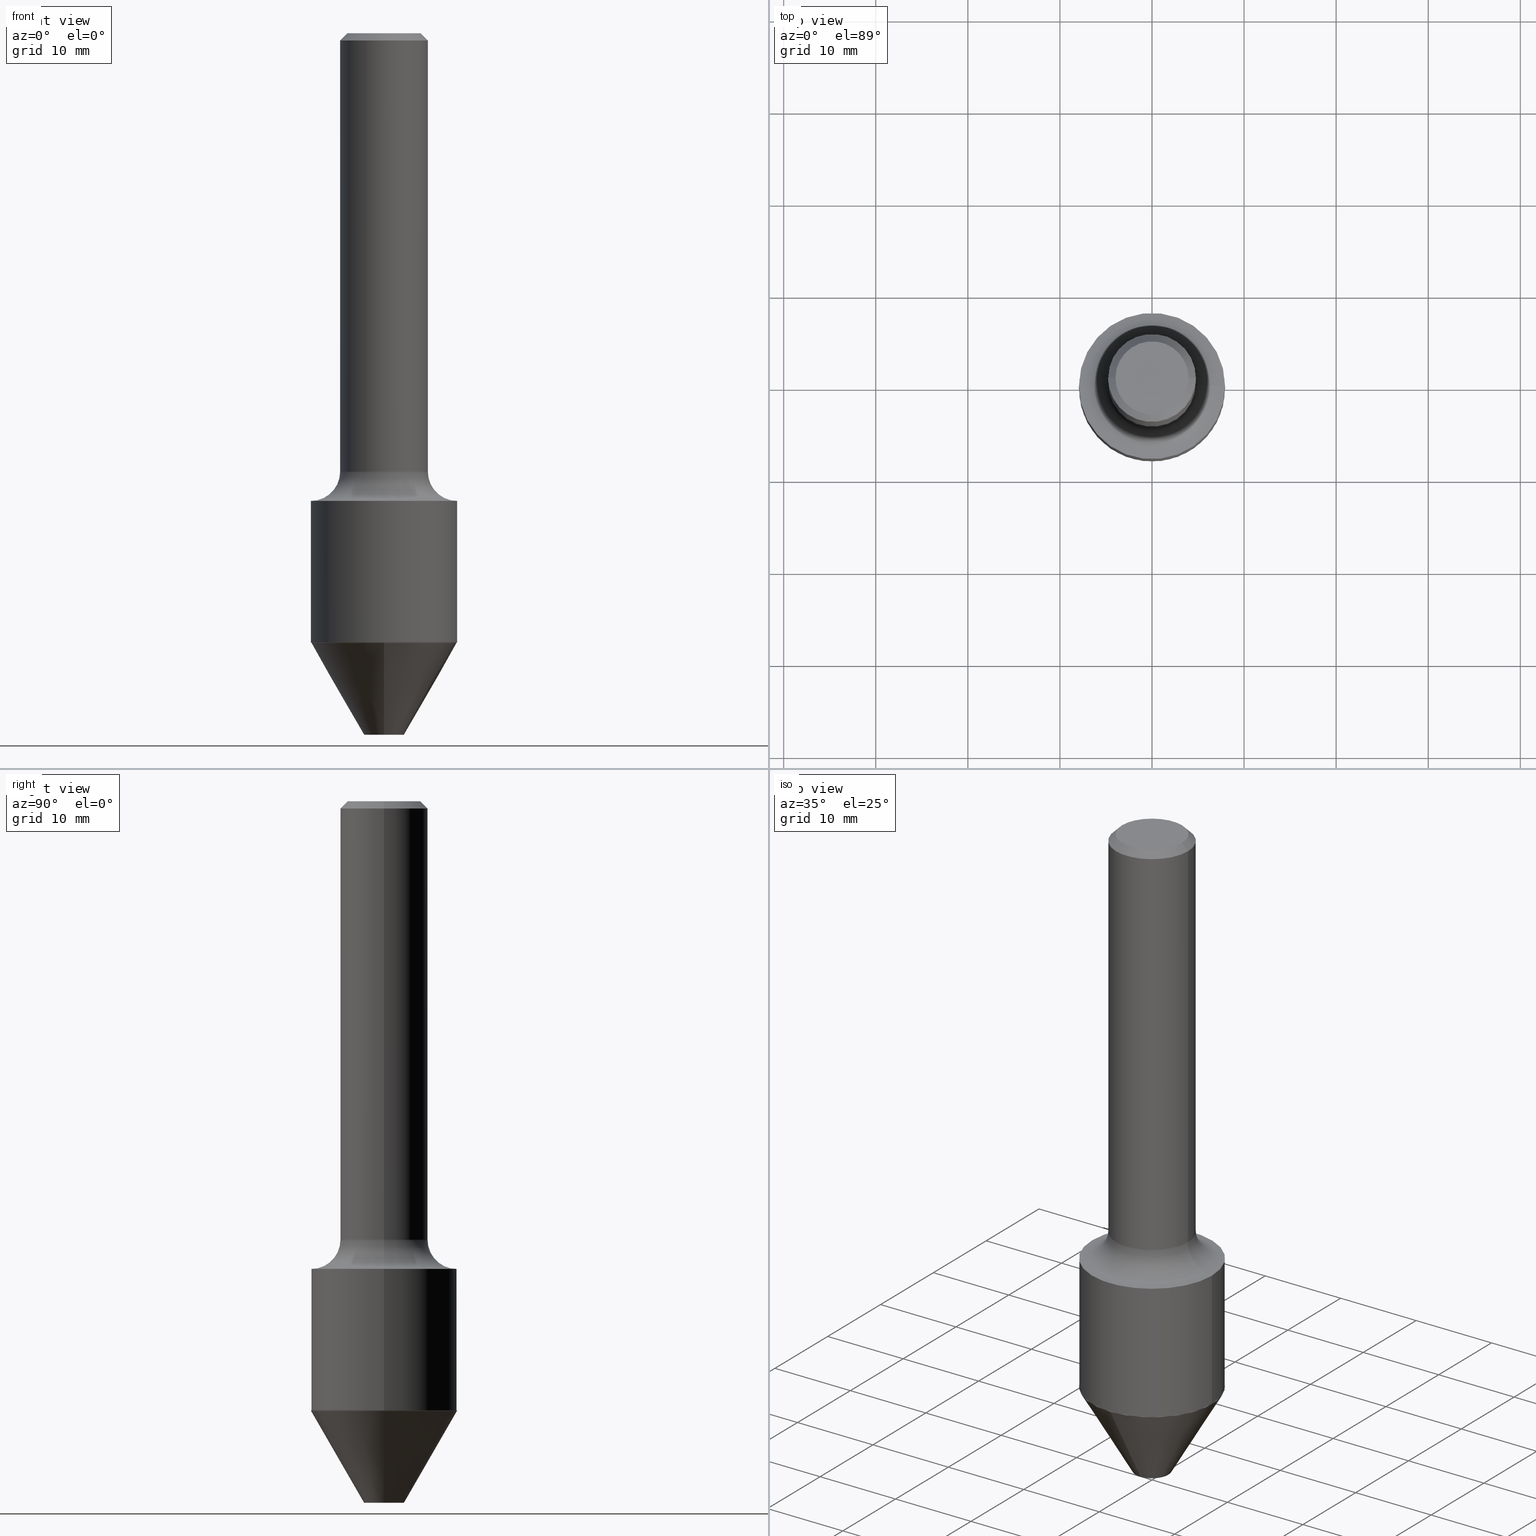
[diagram: canonical four-view strip — front | top / right | iso, engineering-drawing reading convention]
A machine part, canonical four-view strip (front | top / right | iso — engineering-drawing reading convention). The complete STEP part file that produces these views, byte-faithful:
ISO-10303-21;
HEADER;
FILE_DESCRIPTION (( 'STEP AP203' ),
    '1' );
FILE_NAME ('74064.STEP',
    '2025-06-20T12:29:10',
    ( '' ),
    ( '' ),
    'SwSTEP 2.0',
    'SolidWorks 2024',
    '' );
FILE_SCHEMA (( 'CONFIG_CONTROL_DESIGN' ));
ENDSEC;

DATA;
#1 = PERSON_AND_ORGANIZATION ( #16, #374 ) ;
#2 = EDGE_LOOP ( 'NONE', ( #279, #380, #509, #257 ) ) ;
#3 = AXIS2_PLACEMENT_3D ( 'NONE', #347, #268, #189 ) ;
#4 = DATE_AND_TIME ( #405, #421 ) ;
#5 = CARTESIAN_POINT ( 'NONE',  ( -1.871772216193331159E-46, 2.672394653685611172E-32, 7.654042494670965249E-18 ) ) ;
#6 = ADVANCED_FACE ( 'NONE', ( #90 ), #208, .T. ) ;
#7 = COORDINATED_UNIVERSAL_TIME_OFFSET ( 5, 0, .BEHIND. ) ;
#8 = LINE ( 'NONE', #369, #69 ) ;
#9 = VECTOR ( 'NONE', #235, 39.37007874015748143 ) ;
#10 = ORIENTED_EDGE ( 'NONE', *, *, #330, .F. ) ;
#11 = AXIS2_PLACEMENT_3D ( 'NONE', #270, #147, #433 ) ;
#12 = EDGE_CURVE ( 'NONE', #238, #324, #91, .T. ) ;
#13 = ORIENTED_EDGE ( 'NONE', *, *, #343, .T. ) ;
#14 = EDGE_CURVE ( 'NONE', #518, #115, #137, .T. ) ;
#15 = ORIENTED_EDGE ( 'NONE', *, *, #254, .F. ) ;
#16 = PERSON ( 'UNSPECIFIED', 'UNSPECIFIED', 'UNSPECIFIED', ('UNSPECIFIED'), ('UNSPECIFIED'), ('UNSPECIFIED') ) ;
#17 = ORIENTED_EDGE ( 'NONE', *, *, #282, .F. ) ;
#18 = AXIS2_PLACEMENT_3D ( 'NONE', #503, #271, #61 ) ;
#19 = AXIS2_PLACEMENT_3D ( 'NONE', #183, #114, #359 ) ;
#20 = EDGE_CURVE ( 'NONE', #217, #121, #169, .T. ) ;
#21 = ORIENTED_EDGE ( 'NONE', *, *, #48, .F. ) ;
#22 = ORIENTED_EDGE ( 'NONE', *, *, #197, .T. ) ;
#23 = FACE_OUTER_BOUND ( 'NONE', #170, .T. ) ;
#24 = DIRECTION ( 'NONE',  ( -0.7071067811863543939, 7.493145998869656807E-15, 0.7071067811867406405 ) ) ;
#25 = DIRECTION ( 'NONE',  ( -6.982962677686265133E-15, -1.000000000000000000, 3.496765431890257708E-15 ) ) ;
#26 = CARTESIAN_POINT ( 'NONE',  ( 0.1875000000000001110, -1.309305502066175797E-15, 9.142831454617385217E-30 ) ) ;
#27 = DIRECTION ( 'NONE',  ( -2.445468806185136597E-29, 3.491481338843145583E-15, 1.000000000000000000 ) ) ;
#28 = LINE ( 'NONE', #98, #212 ) ;
#29 = PLANE ( 'NONE',  #487 ) ;
#30 = AXIS2_PLACEMENT_3D ( 'NONE', #477, #162, #198 ) ;
#31 = DIRECTION ( 'NONE',  ( 0.7071067811863543939, -2.468850131080234027E-15, 0.7071067811867406405 ) ) ;
#32 = DIRECTION ( 'NONE',  ( 1.000000000000000000, -6.982962677686265922E-15, 0.000000000000000000 ) ) ;
#33 = FACE_OUTER_BOUND ( 'NONE', #443, .T. ) ;
#34 = PERSON_AND_ORGANIZATION ( #16, #374 ) ;
#35 = FACE_OUTER_BOUND ( 'NONE', #175, .T. ) ;
#36 = ORIENTED_EDGE ( 'NONE', *, *, #150, .T. ) ;
#37 = SHAPE_DEFINITION_REPRESENTATION ( #81, #413 ) ;
#38 =( NAMED_UNIT ( * ) PLANE_ANGLE_UNIT ( ) SI_UNIT ( $, .RADIAN. ) );
#39 = ORIENTED_EDGE ( 'NONE', *, *, #51, .T. ) ;
#40 = AXIS2_PLACEMENT_3D ( 'NONE', #385, #517, #32 ) ;
#41 = APPROVAL_DATE_TIME ( #408, #246 ) ;
#42 = EDGE_LOOP ( 'NONE', ( #415, #227 ) ) ;
#43 = ORIENTED_EDGE ( 'NONE', *, *, #104, .T. ) ;
#44 = PRODUCT_RELATED_PRODUCT_CATEGORY ( 'detail', '', ( #127 ) ) ;
#45 = VERTEX_POINT ( 'NONE', #84 ) ;
#46 = ADVANCED_FACE ( 'NONE', ( #214 ), #219, .F. ) ;
#47 = CIRCLE ( 'NONE', #344, 0.3125000000000000000 ) ;
#48 = EDGE_CURVE ( 'NONE', #518, #371, #49, .T. ) ;
#49 = LINE ( 'NONE', #86, #240 ) ;
#50 = ORIENTED_EDGE ( 'NONE', *, *, #423, .F. ) ;
#51 = EDGE_CURVE ( 'NONE', #121, #294, #411, .T. ) ;
#52 = DIRECTION ( 'NONE',  ( -6.982962677686265922E-15, -1.000000000000000000, 3.502369222646487422E-15 ) ) ;
#53 = VECTOR ( 'NONE', #31, 39.37007874015748143 ) ;
#54 = EDGE_CURVE ( 'NONE', #115, #518, #85, .T. ) ;
#55 = ORIENTED_EDGE ( 'NONE', *, *, #392, .F. ) ;
#56 = FACE_OUTER_BOUND ( 'NONE', #456, .T. ) ;
#57 = ORIENTED_EDGE ( 'NONE', *, *, #187, .T. ) ;
#58 = CC_DESIGN_PERSON_AND_ORGANIZATION_ASSIGNMENT ( #34, #367, ( #437 ) ) ;
#59 = DIRECTION ( 'NONE',  ( 1.000000000000000000, -6.982962677686268288E-15, 0.000000000000000000 ) ) ;
#60 = AXIS2_PLACEMENT_3D ( 'NONE', #340, #303, #500 ) ;
#61 = DIRECTION ( 'NONE',  ( 1.000000000000000000, -6.982962677686268288E-15, 0.000000000000000000 ) ) ;
#62 = FACE_OUTER_BOUND ( 'NONE', #269, .T. ) ;
#63 = EDGE_LOOP ( 'NONE', ( #283, #329 ) ) ;
#64 = DIRECTION ( 'NONE',  ( -2.445468806185136597E-29, 3.491481338843145583E-15, 1.000000000000000000 ) ) ;
#65 = CARTESIAN_POINT ( 'NONE',  ( -6.129282462058469724E-29, -2.975807691298307271E-14, -3.000000000000000888 ) ) ;
#66 = LINE ( 'NONE', #468, #386 ) ;
#67 = MANIFOLD_SOLID_BREP ( 'Body-Move/Copy2[1]', #130 ) ;
#68 = DIRECTION ( 'NONE',  ( 6.982962677686265922E-15, 1.000000000000000000, -3.352873643118644171E-15 ) ) ;
#69 = VECTOR ( 'NONE', #325, 39.37007874015748854 ) ;
#70 = AXIS2_PLACEMENT_3D ( 'NONE', #143, #463, #311 ) ;
#71 = DIRECTION ( 'NONE',  ( 2.445468806185136597E-29, -3.491481338843145583E-15, -1.000000000000000000 ) ) ;
#72 = PERSON_AND_ORGANIZATION_ROLE ( 'design_owner' ) ;
#73 = CARTESIAN_POINT ( 'NONE',  ( 0.000000000000000000, 0.000000000000000000, 0.000000000000000000 ) ) ;
#74 = LOCAL_TIME ( 8, 29, 10.00000000000000000, #402 ) ;
#75 = ORIENTED_EDGE ( 'NONE', *, *, #343, .F. ) ;
#76 = APPLICATION_PROTOCOL_DEFINITION ( 'international standard', 'config_control_design', 1994, #133 ) ;
#77 = ORIENTED_EDGE ( 'NONE', *, *, #243, .F. ) ;
#78 = APPROVAL_DATE_TIME ( #4, #230 ) ;
#79 = AXIS2_PLACEMENT_3D ( 'NONE', #105, #432, #125 ) ;
#80 = AXIS2_PLACEMENT_3D ( 'NONE', #129, #452, #211 ) ;
#81 = PRODUCT_DEFINITION_SHAPE ( 'NONE', 'NONE',  #437 ) ;
#82 = LOCAL_TIME ( 8, 29, 10.00000000000000000, #441 ) ;
#83 = CONICAL_SURFACE ( 'NONE', #383, 0.3120000000000001106, 0.7853981633971751641 ) ;
#84 = CARTESIAN_POINT ( 'NONE',  ( -0.3125000000000000000, -4.762516628435978873E-15, -2.000000000000000444 ) ) ;
#85 = CIRCLE ( 'NONE', #436, 0.3120000000000003326 ) ;
#86 = CARTESIAN_POINT ( 'NONE',  ( -2.140475375304656572E-15, -0.3120000000000094920, -2.605458441278116766 ) ) ;
#87 = EDGE_CURVE ( 'NONE', #420, #88, #326, .T. ) ;
#88 = VERTEX_POINT ( 'NONE', #176 ) ;
#89 = DIRECTION ( 'NONE',  ( 1.000000000000000000, -6.982962677686269077E-15, 0.000000000000000000 ) ) ;
#90 = FACE_OUTER_BOUND ( 'NONE', #298, .T. ) ;
#91 = CIRCLE ( 'NONE', #426, 0.08499999999999975631 ) ;
#92 = ORIENTED_EDGE ( 'NONE', *, *, #204, .T. ) ;
#93 = ADVANCED_FACE ( 'NONE', ( #23 ), #292, .T. ) ;
#94 = DIRECTION ( 'NONE',  ( -2.445468806185136597E-29, 3.491481338843145583E-15, 1.000000000000000000 ) ) ;
#95 = EDGE_CURVE ( 'NONE', #286, #484, #47, .T. ) ;
#96 = LINE ( 'NONE', #218, #511 ) ;
#97 = EDGE_CURVE ( 'NONE', #412, #371, #458, .T. ) ;
#98 = CARTESIAN_POINT ( 'NONE',  ( -0.3125000000000000000, 2.220446049250313081E-15, -1.537167215704658232E-29 ) ) ;
#99 = CIRCLE ( 'NONE', #167, 0.3124999999999999445 ) ;
#100 = ORIENTED_EDGE ( 'NONE', *, *, #104, .F. ) ;
#101 = CIRCLE ( 'NONE', #300, 0.1875000000000000278 ) ;
#102 = CARTESIAN_POINT ( 'NONE',  ( -0.3120000000000001106, -6.877366964108272937E-15, -2.605458441278117654 ) ) ;
#103 = PLANE ( 'NONE',  #19 ) ;
#104 = EDGE_CURVE ( 'NONE', #121, #241, #356, .T. ) ;
#105 = CARTESIAN_POINT ( 'NONE',  ( 0.000000000000000000, 0.000000000000000000, 0.000000000000000000 ) ) ;
#106 = DIRECTION ( 'NONE',  ( -2.445468806185136877E-29, 3.491481338843145188E-15, 1.000000000000000000 ) ) ;
#107 = DIRECTION ( 'NONE',  ( 1.000000000000000000, -6.982962677686265922E-15, 4.876176775795935793E-29 ) ) ;
#108 = DIRECTION ( 'NONE',  ( 1.000000000000000000, -6.982962677686266711E-15, 4.876046809215620980E-29 ) ) ;
#109 = LINE ( 'NONE', #315, #174 ) ;
#110 = PERSON_AND_ORGANIZATION ( #16, #374 ) ;
#111 = CIRCLE ( 'NONE', #122, 0.08499999999999975631 ) ;
#112 = CARTESIAN_POINT ( 'NONE',  ( -2.142190499804097946E-15, -0.3120000000000094920, -2.605458441278116766 ) ) ;
#113 = AXIS2_PLACEMENT_3D ( 'NONE', #400, #64, #391 ) ;
#114 = DIRECTION ( 'NONE',  ( 2.438088387897960049E-29, -3.491481338843145188E-15, -1.000000000000000000 ) ) ;
#115 = VERTEX_POINT ( 'NONE', #506 ) ;
#116 = DIRECTION ( 'NONE',  ( -6.982962677686265133E-15, -1.000000000000000000, 3.496765431890257708E-15 ) ) ;
#117 = DATE_AND_TIME ( #258, #504 ) ;
#118 = PERSON_AND_ORGANIZATION ( #16, #374 ) ;
#119 = DIRECTION ( 'NONE',  ( -6.982962677686265922E-15, -1.000000000000000000, 3.502369222646487422E-15 ) ) ;
#120 = APPROVAL_STATUS ( 'not_yet_approved' ) ;
#121 = VERTEX_POINT ( 'NONE', #144 ) ;
#122 = AXIS2_PLACEMENT_3D ( 'NONE', #516, #193, #139 ) ;
#123 = FACE_OUTER_BOUND ( 'NONE', #336, .T. ) ;
#124 = CC_DESIGN_PERSON_AND_ORGANIZATION_ASSIGNMENT ( #153, #192, ( #155 ) ) ;
#125 = DIRECTION ( 'NONE',  ( 1.000000000000000000, -6.982962677686266711E-15, 4.876176775795935793E-29 ) ) ;
#126 = ORIENTED_EDGE ( 'NONE', *, *, #476, .F. ) ;
#127 = PRODUCT ( '74064', '74064', '', ( #361 ) ) ;
#128 = VERTEX_POINT ( 'NONE', #515 ) ;
#129 = CARTESIAN_POINT ( 'NONE',  ( 4.585254011597132801E-29, -6.546527510330900285E-15, -1.875000000000000666 ) ) ;
#130 = CLOSED_SHELL ( 'NONE', ( #287, #232, #439, #335, #295, #93 ) ) ;
#131 = ORIENTED_EDGE ( 'NONE', *, *, #150, .F. ) ;
#132 = DIRECTION ( 'NONE',  ( -2.445468806185136597E-29, 3.491481338843145583E-15, 1.000000000000000000 ) ) ;
#133 = APPLICATION_CONTEXT ( 'configuration controlled 3d designs of mechanical parts and assemblies' ) ;
#134 = ORIENTED_EDGE ( 'NONE', *, *, #12, .T. ) ;
#135 = DIRECTION ( 'NONE',  ( 1.000000000000000000, -6.982962677686263555E-15, 0.000000000000000000 ) ) ;
#136 = CC_DESIGN_PERSON_AND_ORGANIZATION_ASSIGNMENT ( #118, #228, ( #155 ) ) ;
#137 = CIRCLE ( 'NONE', #398, 0.3120000000000003326 ) ;
#138 = ADVANCED_FACE ( 'NONE', ( #152 ), #333, .T. ) ;
#139 = DIRECTION ( 'NONE',  ( -6.982962677686265922E-15, -1.000000000000000000, 6.427877632151226320E-15 ) ) ;
#140 = ADVANCED_FACE ( 'NONE', ( #465 ), #194, .F. ) ;
#141 = CARTESIAN_POINT ( 'NONE',  ( 6.344863139330909896E-29, -9.135151467787947127E-15, -2.605458441278117654 ) ) ;
#142 = DIRECTION ( 'NONE',  ( 1.000000000000000000, -6.982962677686266711E-15, 4.876176775795935793E-29 ) ) ;
#143 = CARTESIAN_POINT ( 'NONE',  ( 4.890937612370273754E-29, -6.982962677686291954E-15, -2.000000000000000444 ) ) ;
#144 = CARTESIAN_POINT ( 'NONE',  ( 0.1875000000000002498, -7.855833012397076871E-15, -1.875000000000000666 ) ) ;
#145 = CYLINDRICAL_SURFACE ( 'NONE', #190, 0.3125000000000000000 ) ;
#146 = ORIENTED_EDGE ( 'NONE', *, *, #87, .F. ) ;
#147 = DIRECTION ( 'NONE',  ( -2.445468806185136597E-29, 3.491481338843145583E-15, 1.000000000000000000 ) ) ;
#148 = CIRCLE ( 'NONE', #70, 0.3125000000000000000 ) ;
#149 = FACE_OUTER_BOUND ( 'NONE', #308, .T. ) ;
#150 = EDGE_CURVE ( 'NONE', #121, #217, #317, .T. ) ;
#151 = ORIENTED_EDGE ( 'NONE', *, *, #95, .T. ) ;
#152 = FACE_OUTER_BOUND ( 'NONE', #322, .T. ) ;
#153 = PERSON_AND_ORGANIZATION ( #16, #374 ) ;
#154 = CARTESIAN_POINT ( 'NONE',  ( 0.3125000000000000000, -9.165138514463251879E-15, -2.000000000000000444 ) ) ;
#155 = PRODUCT_DEFINITION_FORMATION_WITH_SPECIFIED_SOURCE ( 'ANY', '', #127, .NOT_KNOWN. ) ;
#156 = ORIENTED_EDGE ( 'NONE', *, *, #330, .T. ) ;
#157 = DIRECTION ( 'NONE',  ( 7.105427357601001859E-15, 1.000000000000000000, -3.491481338843145583E-15 ) ) ;
#158 = CARTESIAN_POINT ( 'NONE',  ( 0.3125000000000000000, -1.127733962296143395E-14, -2.604958441278117487 ) ) ;
#159 = CC_DESIGN_PERSON_AND_ORGANIZATION_ASSIGNMENT ( #1, #72, ( #127 ) ) ;
#160 = ORIENTED_EDGE ( 'NONE', *, *, #234, .T. ) ;
#161 = CIRCLE ( 'NONE', #172, 0.1563000000000000500 ) ;
#162 = DIRECTION ( 'NONE',  ( -2.445468806185136597E-29, 3.491481338843145583E-15, 1.000000000000000000 ) ) ;
#163 = CARTESIAN_POINT ( 'NONE',  ( 6.371567343957385272E-29, -9.096909526853896321E-15, -2.605458441278117654 ) ) ;
#164 = CARTESIAN_POINT ( 'NONE',  ( -0.1875000000000001110, 1.332267629550188637E-15, -9.223003294227953596E-30 ) ) ;
#165 = EDGE_CURVE ( 'NONE', #217, #45, #495, .T. ) ;
#166 = ORIENTED_EDGE ( 'NONE', *, *, #200, .T. ) ;
#167 = AXIS2_PLACEMENT_3D ( 'NONE', #225, #182, #388 ) ;
#168 = DIRECTION ( 'NONE',  ( -2.445468806185136877E-29, 3.491481338843145188E-15, 1.000000000000000000 ) ) ;
#169 = CIRCLE ( 'NONE', #202, 0.1875000000000002498 ) ;
#170 = EDGE_LOOP ( 'NONE', ( #21, #288, #459, #274 ) ) ;
#171 = ORIENTED_EDGE ( 'NONE', *, *, #20, .T. ) ;
#172 = AXIS2_PLACEMENT_3D ( 'NONE', #261, #502, #108 ) ;
#173 = ORIENTED_EDGE ( 'NONE', *, *, #204, .F. ) ;
#174 = VECTOR ( 'NONE', #505, 39.37007874015748143 ) ;
#175 = EDGE_LOOP ( 'NONE', ( #36, #296, #173, #100 ) ) ;
#176 = CARTESIAN_POINT ( 'NONE',  ( 0.1563000000000000500, -1.233786714702880152E-15, 7.654042494679095754E-18 ) ) ;
#177 = VERTEX_POINT ( 'NONE', #233 ) ;
#178 = APPROVAL_STATUS ( 'not_yet_approved' ) ;
#179 = DIRECTION ( 'NONE',  ( -2.445468806185136597E-29, 3.491481338843145583E-15, 1.000000000000000000 ) ) ;
#180 = VECTOR ( 'NONE', #168, 39.37007874015748143 ) ;
#181 = DIRECTION ( 'NONE',  ( 1.000000000000000000, -6.982962677686266711E-15, 4.876046809215620980E-29 ) ) ;
#182 = DIRECTION ( 'NONE',  ( -2.542258042793565375E-29, 3.352873643118644171E-15, 1.000000000000000000 ) ) ;
#183 = CARTESIAN_POINT ( 'NONE',  ( 1.091437066522363671E-15, 0.1563000000000000500, -5.418915120138483345E-16 ) ) ;
#184 = DIRECTION ( 'NONE',  ( 1.000000000000000000, -6.982962677686266711E-15, 4.876176775795936353E-29 ) ) ;
#185 = DIRECTION ( 'NONE',  ( -2.445468806185136597E-29, 3.491481338843145583E-15, 1.000000000000000000 ) ) ;
#186 = ORIENTED_EDGE ( 'NONE', *, *, #243, .T. ) ;
#187 = EDGE_CURVE ( 'NONE', #355, #128, #469, .T. ) ;
#188 = CARTESIAN_POINT ( 'NONE',  ( 6.371567343957385272E-29, -9.096909526853896321E-15, -2.605458441278117654 ) ) ;
#189 = DIRECTION ( 'NONE',  ( -6.982962677686265133E-15, -1.000000000000000000, 3.496765431890257708E-15 ) ) ;
#190 = AXIS2_PLACEMENT_3D ( 'NONE', #305, #467, #265 ) ;
#191 = ORIENTED_EDGE ( 'NONE', *, *, #165, .F. ) ;
#192 = PERSON_AND_ORGANIZATION_ROLE ( 'creator' ) ;
#193 = DIRECTION ( 'NONE',  ( -2.542258042793565375E-29, 3.352873643118644171E-15, 1.000000000000000000 ) ) ;
#194 = PLANE ( 'NONE',  #365 ) ;
#195 = SECURITY_CLASSIFICATION_LEVEL ( 'unclassified' ) ;
#196 = ADVANCED_FACE ( 'NONE', ( #33 ), #103, .F. ) ;
#197 = EDGE_CURVE ( 'NONE', #177, #241, #309, .T. ) ;
#198 = DIRECTION ( 'NONE',  ( 1.000000000000000000, -6.982962677686267499E-15, 4.883557194083114022E-29 ) ) ;
#199 = CARTESIAN_POINT ( 'NONE',  ( -0.1875000000000000278, 1.200371284294268058E-15, -0.03120000000000022755 ) ) ;
#200 = EDGE_CURVE ( 'NONE', #324, #371, #66, .T. ) ;
#201 =( CONVERSION_BASED_UNIT ( 'INCH', #320 ) LENGTH_UNIT ( ) NAMED_UNIT ( #260 ) );
#202 = AXIS2_PLACEMENT_3D ( 'NONE', #450, #494, #135 ) ;
#203 = CARTESIAN_POINT ( 'NONE',  ( 0.000000000000000000, 0.000000000000000000, 0.000000000000000000 ) ) ;
#204 = EDGE_CURVE ( 'NONE', #241, #177, #101, .T. ) ;
#205 = ORIENTED_EDGE ( 'NONE', *, *, #200, .F. ) ;
#206 = DATE_TIME_ROLE ( 'creation_date' ) ;
#207 = VECTOR ( 'NONE', #384, 39.37007874015748143 ) ;
#208 = CONICAL_SURFACE ( 'NONE', #501, 0.1875000000000000278, 0.7853981633974439491 ) ;
#209 = ORIENTED_EDGE ( 'NONE', *, *, #48, .T. ) ;
#210 = ORIENTED_EDGE ( 'NONE', *, *, #491, .F. ) ;
#211 = DIRECTION ( 'NONE',  ( 1.000000000000000000, -6.982962677686267499E-15, 4.883557194083114022E-29 ) ) ;
#212 = VECTOR ( 'NONE', #106, 39.37007874015748143 ) ;
#213 = DIRECTION ( 'NONE',  ( -4.851104656543614059E-15, -0.7071067811869362618, -0.7071067811861587726 ) ) ;
#214 = FACE_OUTER_BOUND ( 'NONE', #2, .T. ) ;
#215 = CC_DESIGN_APPROVAL ( #419, ( #155 ) ) ;
#216 = CARTESIAN_POINT ( 'NONE',  ( 2.220446049250375795E-15, 0.3124999999999907851, -2.605958441278117821 ) ) ;
#217 = VERTEX_POINT ( 'NONE', #222 ) ;
#218 = CARTESIAN_POINT ( 'NONE',  ( -0.3120000000000001106, -6.880016191282383349E-15, -2.605458441278117654 ) ) ;
#219 = TOROIDAL_SURFACE ( 'NONE', #80, 0.3125000000000000000, 0.1249999999999996947 ) ;
#220 = DIRECTION ( 'NONE',  ( -1.000000000000000000, 6.982962677686265922E-15, 0.000000000000000000 ) ) ;
#221 = DIRECTION ( 'NONE',  ( 1.000000000000000000, -6.982962677686269077E-15, 0.000000000000000000 ) ) ;
#222 = CARTESIAN_POINT ( 'NONE',  ( -0.1875000000000002498, -4.988388254608345655E-15, -1.875000000000000666 ) ) ;
#223 = EDGE_LOOP ( 'NONE', ( #366, #134, #166, #368 ) ) ;
#224 = PLANE ( 'NONE',  #247 ) ;
#225 = CARTESIAN_POINT ( 'NONE',  ( 6.346134268352303215E-29, -9.136827904609504571E-15, -2.605958441278116933 ) ) ;
#226 = FACE_OUTER_BOUND ( 'NONE', #379, .T. ) ;
#227 = ORIENTED_EDGE ( 'NONE', *, *, #12, .F. ) ;
#228 = PERSON_AND_ORGANIZATION_ROLE ( 'design_supplier' ) ;
#229 = AXIS2_PLACEMENT_3D ( 'NONE', #394, #348, #116 ) ;
#230 = APPROVAL ( #357, 'UNSPECIFIED' ) ;
#231 = APPLICATION_CONTEXT ( 'configuration controlled 3d designs of mechanical parts and assemblies' ) ;
#232 = ADVANCED_FACE ( 'NONE', ( #62 ), #407, .T. ) ;
#233 = CARTESIAN_POINT ( 'NONE',  ( -0.1875000000000000278, 1.200371284294268058E-15, -0.03120000000000022755 ) ) ;
#234 = EDGE_CURVE ( 'NONE', #88, #241, #109, .T. ) ;
#235 = DIRECTION ( 'NONE',  ( -0.7071067811865444641, 2.468850131082224717E-15, -0.7071067811865505703 ) ) ;
#236 = CALENDAR_DATE ( 2025, 20, 6 ) ;
#237 = LINE ( 'NONE', #448, #499 ) ;
#238 = VERTEX_POINT ( 'NONE', #272 ) ;
#239 = CIRCLE ( 'NONE', #18, 0.3120000000000001106 ) ;
#240 = VECTOR ( 'NONE', #213, 39.37007874015748143 ) ;
#241 = VERTEX_POINT ( 'NONE', #389 ) ;
#242 = MANIFOLD_SOLID_BREP ( 'Body-Move/Copy2[2]', #373 ) ;
#243 = EDGE_CURVE ( 'NONE', #294, #45, #148, .T. ) ;
#244 = DATE_AND_TIME ( #485, #390 ) ;
#245 = ORIENTED_EDGE ( 'NONE', *, *, #289, .F. ) ;
#246 = APPROVAL ( #120, 'UNSPECIFIED' ) ;
#247 = AXIS2_PLACEMENT_3D ( 'NONE', #65, #358, #68 ) ;
#248 = VECTOR ( 'NONE', #472, 39.37007874015748143 ) ;
#249 = DIRECTION ( 'NONE',  ( -2.542258042793565375E-29, 3.352873643118644171E-15, 1.000000000000000000 ) ) ;
#250 = ORIENTED_EDGE ( 'NONE', *, *, #423, .T. ) ;
#251 = APPROVAL_PERSON_ORGANIZATION ( #453, #419, #337 ) ;
#252 = DESIGN_CONTEXT ( 'detailed design', #133, 'design' ) ;
#253 = ORIENTED_EDGE ( 'NONE', *, *, #395, .F. ) ;
#254 = EDGE_CURVE ( 'NONE', #286, #45, #28, .T. ) ;
#255 = DIRECTION ( 'NONE',  ( 1.000000000000000000, -6.982962677686272233E-15, 0.000000000000000000 ) ) ;
#256 = DIRECTION ( 'NONE',  ( -6.982962677686265922E-15, -1.000000000000000000, 6.427877632151226320E-15 ) ) ;
#257 = ORIENTED_EDGE ( 'NONE', *, *, #51, .F. ) ;
#258 = CALENDAR_DATE ( 2025, 20, 6 ) ;
#259 = CARTESIAN_POINT ( 'NONE',  ( 6.371567343957385272E-29, -9.096909526853896321E-15, -2.605458441278117654 ) ) ;
#260 = DIMENSIONAL_EXPONENTS ( 1.000000000000000000, 0.000000000000000000, 0.000000000000000000, 0.000000000000000000, 0.000000000000000000, 0.000000000000000000, 0.000000000000000000 ) ;
#261 = CARTESIAN_POINT ( 'NONE',  ( -1.871772216193331159E-46, 2.672394653685611172E-32, 7.654042494670965249E-18 ) ) ;
#262 = EDGE_LOOP ( 'NONE', ( #427, #409, #50, #10 ) ) ;
#263 = AXIS2_PLACEMENT_3D ( 'NONE', #438, #71, #220 ) ;
#264 = DIRECTION ( 'NONE',  ( -2.438088387897960049E-29, 3.491481338843145188E-15, 1.000000000000000000 ) ) ;
#265 = DIRECTION ( 'NONE',  ( 1.000000000000000000, -6.982962677686266711E-15, 4.876176775795936353E-29 ) ) ;
#266 = DIRECTION ( 'NONE',  ( 1.000000000000000000, -6.982962677686265922E-15, 0.000000000000000000 ) ) ;
#267 = CARTESIAN_POINT ( 'NONE',  ( 6.346134268352303215E-29, -9.136827904609504571E-15, -2.605958441278116933 ) ) ;
#268 = DIRECTION ( 'NONE',  ( -2.542258042793565375E-29, 3.352873643118644171E-15, 1.000000000000000000 ) ) ;
#269 = EDGE_LOOP ( 'NONE', ( #290, #464, #75, #205 ) ) ;
#270 = CARTESIAN_POINT ( 'NONE',  ( 4.585254011597132801E-29, -6.546527510330900285E-15, -1.875000000000000666 ) ) ;
#271 = DIRECTION ( 'NONE',  ( -2.445468806185136597E-29, 3.491481338843145583E-15, 1.000000000000000000 ) ) ;
#272 = CARTESIAN_POINT ( 'NONE',  ( 1.412203687323265652E-15, 0.08499999999998929245, -3.000000000000001332 ) ) ;
#273 = CIRCLE ( 'NONE', #341, 0.3125000000000000000 ) ;
#274 = ORIENTED_EDGE ( 'NONE', *, *, #97, .T. ) ;
#275 = AXIS2_PLACEMENT_3D ( 'NONE', #5, #132, #181 ) ;
#276 = ORIENTED_EDGE ( 'NONE', *, *, #289, .T. ) ;
#277 = APPROVAL_DATE_TIME ( #117, #419 ) ;
#278 = DIRECTION ( 'NONE',  ( -2.445468806185136597E-29, 3.491481338843145583E-15, 1.000000000000000000 ) ) ;
#279 = ORIENTED_EDGE ( 'NONE', *, *, #20, .F. ) ;
#280 = PERSON_AND_ORGANIZATION ( #16, #374 ) ;
#281 = APPROVAL_ROLE ( '' ) ;
#282 = EDGE_CURVE ( 'NONE', #45, #294, #273, .T. ) ;
#283 = ORIENTED_EDGE ( 'NONE', *, *, #54, .T. ) ;
#284 = AXIS2_PLACEMENT_3D ( 'NONE', #346, #27, #184 ) ;
#285 = FACE_OUTER_BOUND ( 'NONE', #440, .T. ) ;
#286 = VERTEX_POINT ( 'NONE', #350 ) ;
#287 = ADVANCED_FACE ( 'NONE', ( #226 ), #352, .T. ) ;
#288 = ORIENTED_EDGE ( 'NONE', *, *, #54, .F. ) ;
#289 = EDGE_CURVE ( 'NONE', #420, #177, #403, .T. ) ;
#290 = ORIENTED_EDGE ( 'NONE', *, *, #401, .T. ) ;
#291 = ADVANCED_FACE ( 'NONE', ( #35 ), #364, .T. ) ;
#292 = CONICAL_SURFACE ( 'NONE', #60, 0.3120000000000003326, 0.7853981633979947308 ) ;
#293 = DIRECTION ( 'NONE',  ( 2.445468806185136597E-29, -3.491481338843145583E-15, -1.000000000000000000 ) ) ;
#294 = VERTEX_POINT ( 'NONE', #154 ) ;
#295 = ADVANCED_FACE ( 'NONE', ( #461 ), #297, .T. ) ;
#296 = ORIENTED_EDGE ( 'NONE', *, *, #476, .T. ) ;
#297 = CONICAL_SURFACE ( 'NONE', #446, 0.3124999999999999445, 0.5235987755983383396 ) ;
#298 = EDGE_LOOP ( 'NONE', ( #55, #160, #92, #245 ) ) ;
#299 = COORDINATED_UNIVERSAL_TIME_OFFSET ( 5, 0, .BEHIND. ) ;
#300 = AXIS2_PLACEMENT_3D ( 'NONE', #354, #513, #266 ) ;
#301 = CARTESIAN_POINT ( 'NONE',  ( 6.370344609554292470E-29, -9.095163786184474028E-15, -2.604958441278117487 ) ) ;
#302 = CC_DESIGN_APPROVAL ( #230, ( #328 ) ) ;
#303 = DIRECTION ( 'NONE',  ( 2.542258042793565375E-29, -3.352873643118644171E-15, -1.000000000000000000 ) ) ;
#304 = CARTESIAN_POINT ( 'NONE',  ( 0.3120000000000001106, -1.127559388229201324E-14, -2.605458441278117654 ) ) ;
#305 = CARTESIAN_POINT ( 'NONE',  ( 0.000000000000000000, 0.000000000000000000, 0.000000000000000000 ) ) ;
#306 = CIRCLE ( 'NONE', #416, 0.3125000000000000000 ) ;
#307 = DIRECTION ( 'NONE',  ( 6.982962677686265922E-15, 1.000000000000000000, -3.502369222646487422E-15 ) ) ;
#308 = EDGE_LOOP ( 'NONE', ( #126, #171, #43, #497 ) ) ;
#309 = CIRCLE ( 'NONE', #40, 0.1875000000000000278 ) ;
#310 = CARTESIAN_POINT ( 'NONE',  ( -5.935518276032573736E-16, -0.08500000000001022016, -3.000000000000000444 ) ) ;
#311 = DIRECTION ( 'NONE',  ( 1.000000000000000000, -6.982962677686269077E-15, 0.000000000000000000 ) ) ;
#312 = CC_DESIGN_SECURITY_CLASSIFICATION ( #328, ( #155 ) ) ;
#313 = FACE_OUTER_BOUND ( 'NONE', #262, .T. ) ;
#314 = DATE_TIME_ROLE ( 'classification_date' ) ;
#315 = CARTESIAN_POINT ( 'NONE',  ( 0.1875000000000000278, -1.395277592354069315E-15, -0.03120000000000022755 ) ) ;
#316 = ORIENTED_EDGE ( 'NONE', *, *, #87, .T. ) ;
#317 = CIRCLE ( 'NONE', #11, 0.1875000000000002498 ) ;
#318 = LINE ( 'NONE', #164, #180 ) ;
#319 = DIRECTION ( 'NONE',  ( -2.542258042793565375E-29, 3.352873643118644171E-15, 1.000000000000000000 ) ) ;
#320 = LENGTH_MEASURE_WITH_UNIT ( LENGTH_MEASURE( 0.02539999999999999897 ), #410 );
#321 = APPROVAL_PERSON_ORGANIZATION ( #363, #246, #281 ) ;
#322 = EDGE_LOOP ( 'NONE', ( #414, #146, #276, #22 ) ) ;
#323 = DIRECTION ( 'NONE',  ( 1.000000000000000000, 0.000000000000000000, 0.000000000000000000 ) ) ;
#324 = VERTEX_POINT ( 'NONE', #310 ) ;
#325 = DIRECTION ( 'NONE',  ( 3.552713678800720233E-15, 0.5000000000000369704, 0.8660254037844171693 ) ) ;
#326 = CIRCLE ( 'NONE', #275, 0.1563000000000000500 ) ;
#327 = CC_DESIGN_DATE_AND_TIME_ASSIGNMENT ( #473, #314, ( #328 ) ) ;
#328 = SECURITY_CLASSIFICATION ( '', '', #195 ) ;
#329 = ORIENTED_EDGE ( 'NONE', *, *, #14, .T. ) ;
#330 = EDGE_CURVE ( 'NONE', #128, #484, #424, .T. ) ;
#331 = CARTESIAN_POINT ( 'NONE',  ( 6.344863139330909896E-29, -9.135151467787947127E-15, -2.605458441278117654 ) ) ;
#332 = AXIS2_PLACEMENT_3D ( 'NONE', #508, #397, #307 ) ;
#333 = CONICAL_SURFACE ( 'NONE', #263, 0.1875000000000000278, 0.7853981633974439491 ) ;
#334 = CARTESIAN_POINT ( 'NONE',  ( 7.629862675297681829E-31, -1.089342177719069380E-16, -0.03120000000000022755 ) ) ;
#335 = ADVANCED_FACE ( 'NONE', ( #462 ), #224, .T. ) ;
#336 = EDGE_LOOP ( 'NONE', ( #191, #131, #39, #186 ) ) ;
#337 = APPROVAL_ROLE ( '' ) ;
#338 = APPROVAL_PERSON_ORGANIZATION ( #110, #230, #444 ) ;
#339 = DIRECTION ( 'NONE',  ( -1.000000000000000000, 6.982962677686265922E-15, 0.000000000000000000 ) ) ;
#340 = CARTESIAN_POINT ( 'NONE',  ( 6.344863139330909896E-29, -9.135151467787947127E-15, -2.605458441278117654 ) ) ;
#341 = AXIS2_PLACEMENT_3D ( 'NONE', #425, #185, #430 ) ;
#342 = CARTESIAN_POINT ( 'NONE',  ( 0.3125000000000000000, -2.182175836776958347E-15, 1.523805242436230075E-29 ) ) ;
#343 = EDGE_CURVE ( 'NONE', #371, #412, #99, .T. ) ;
#344 = AXIS2_PLACEMENT_3D ( 'NONE', #455, #460, #89 ) ;
#345 = ADVANCED_FACE ( 'NONE', ( #313 ), #372, .T. ) ;
#346 = CARTESIAN_POINT ( 'NONE',  ( 0.000000000000000000, 0.000000000000000000, 0.000000000000000000 ) ) ;
#347 = CARTESIAN_POINT ( 'NONE',  ( 6.346134268352303215E-29, -9.136827904609504571E-15, -2.605958441278116933 ) ) ;
#348 = DIRECTION ( 'NONE',  ( -2.542258042793565375E-29, 3.352873643118644171E-15, 1.000000000000000000 ) ) ;
#349 = CYLINDRICAL_SURFACE ( 'NONE', #284, 0.3125000000000000000 ) ;
#350 = CARTESIAN_POINT ( 'NONE',  ( -0.3125000000000000000, -5.818617182685069910E-15, -2.604958441278117487 ) ) ;
#351 = DIRECTION ( 'NONE',  ( 2.542258042793564815E-29, -3.352873643118644171E-15, -1.000000000000000000 ) ) ;
#352 = CONICAL_SURFACE ( 'NONE', #332, 0.3120000000000003326, 0.7853981633979947308 ) ;
#353 = EDGE_CURVE ( 'NONE', #484, #294, #474, .T. ) ;
#354 = CARTESIAN_POINT ( 'NONE',  ( 7.629862675297681829E-31, -1.089342177719069380E-16, -0.03120000000000022755 ) ) ;
#355 = VERTEX_POINT ( 'NONE', #102 ) ;
#356 = LINE ( 'NONE', #26, #248 ) ;
#357 = APPROVAL_STATUS ( 'not_yet_approved' ) ;
#358 = DIRECTION ( 'NONE',  ( 2.542258042793564815E-29, -3.352873643118644171E-15, -1.000000000000000000 ) ) ;
#359 = DIRECTION ( 'NONE',  ( -1.000000000000000000, 6.982962677686265922E-15, -4.876176775795935793E-29 ) ) ;
#360 = CARTESIAN_POINT ( 'NONE',  ( -0.3125000000000000000, -4.326081461080587204E-15, -1.875000000000000666 ) ) ;
#361 = MECHANICAL_CONTEXT ( 'NONE', #231, 'mechanical' ) ;
#362 = DIRECTION ( 'NONE',  ( -3.491481338843393285E-15, -0.5000000000000313083, 0.8660254037844206110 ) ) ;
#363 = PERSON_AND_ORGANIZATION ( #16, #374 ) ;
#364 = CYLINDRICAL_SURFACE ( 'NONE', #466, 0.1875000000000001110 ) ;
#365 = AXIS2_PLACEMENT_3D ( 'NONE', #510, #264, #107 ) ;
#366 = ORIENTED_EDGE ( 'NONE', *, *, #480, .F. ) ;
#367 = PERSON_AND_ORGANIZATION_ROLE ( 'creator' ) ;
#368 = ORIENTED_EDGE ( 'NONE', *, *, #97, .F. ) ;
#369 = CARTESIAN_POINT ( 'NONE',  ( 2.220446049250375795E-15, 0.3124999999999907851, -2.605958441278117821 ) ) ;
#370 = CC_DESIGN_PERSON_AND_ORGANIZATION_ASSIGNMENT ( #280, #470, ( #328 ) ) ;
#371 = VERTEX_POINT ( 'NONE', #393 ) ;
#372 = CONICAL_SURFACE ( 'NONE', #406, 0.3120000000000001106, 0.7853981633971751641 ) ;
#373 = CLOSED_SHELL ( 'NONE', ( #291, #6, #345, #387, #46, #486, #431, #483, #140, #196, #138, #447 ) ) ;
#374 = ORGANIZATION ( 'UNSPECIFIED', 'UNSPECIFIED', '' ) ;
#375 = ORIENTED_EDGE ( 'NONE', *, *, #382, .F. ) ;
#376 = ORIENTED_EDGE ( 'NONE', *, *, #187, .F. ) ;
#377 =( GEOMETRIC_REPRESENTATION_CONTEXT ( 3 ) GLOBAL_UNCERTAINTY_ASSIGNED_CONTEXT ( ( #417 ) ) GLOBAL_UNIT_ASSIGNED_CONTEXT ( ( #201, #38, #489 ) ) REPRESENTATION_CONTEXT ( 'NONE', 'WORKASPACE' ) );
#378 = AXIS2_PLACEMENT_3D ( 'NONE', #360, #157, #428 ) ;
#379 = EDGE_LOOP ( 'NONE', ( #404, #209, #13, #210 ) ) ;
#380 = ORIENTED_EDGE ( 'NONE', *, *, #165, .T. ) ;
#381 = CARTESIAN_POINT ( 'NONE',  ( -0.1563000000000000500, 1.145904175408315963E-15, 7.654042494663141351E-18 ) ) ;
#382 = EDGE_CURVE ( 'NONE', #355, #286, #96, .T. ) ;
#383 = AXIS2_PLACEMENT_3D ( 'NONE', #163, #278, #399 ) ;
#384 = DIRECTION ( 'NONE',  ( -2.445468806185136877E-29, 3.491481338843145188E-15, 1.000000000000000000 ) ) ;
#385 = CARTESIAN_POINT ( 'NONE',  ( 7.629862675297681829E-31, -1.089342177719069380E-16, -0.03120000000000022755 ) ) ;
#386 = VECTOR ( 'NONE', #362, 39.37007874015748143 ) ;
#387 = ADVANCED_FACE ( 'NONE', ( #56 ), #349, .T. ) ;
#388 = DIRECTION ( 'NONE',  ( -6.982962677686265133E-15, -1.000000000000000000, 3.496765431890257708E-15 ) ) ;
#389 = CARTESIAN_POINT ( 'NONE',  ( 0.1875000000000000278, -1.395277592354069315E-15, -0.03120000000000022755 ) ) ;
#390 = LOCAL_TIME ( 8, 29, 10.00000000000000000, #7 ) ;
#391 = DIRECTION ( 'NONE',  ( 1.000000000000000000, -6.982962677686268288E-15, 0.000000000000000000 ) ) ;
#392 = EDGE_CURVE ( 'NONE', #88, #420, #161, .T. ) ;
#393 = CARTESIAN_POINT ( 'NONE',  ( -2.182175836776893660E-15, -0.3125000000000091038, -2.605958441278115600 ) ) ;
#394 = CARTESIAN_POINT ( 'NONE',  ( 6.346134268352303215E-29, -9.136827904609504571E-15, -2.605958441278116933 ) ) ;
#395 = EDGE_CURVE ( 'NONE', #128, #355, #239, .T. ) ;
#396 = DIRECTION ( 'NONE',  ( -2.445468806185136597E-29, 3.491481338843145583E-15, 1.000000000000000000 ) ) ;
#397 = DIRECTION ( 'NONE',  ( 2.542258042793565375E-29, -3.352873643118644171E-15, -1.000000000000000000 ) ) ;
#398 = AXIS2_PLACEMENT_3D ( 'NONE', #331, #418, #52 ) ;
#399 = DIRECTION ( 'NONE',  ( 1.000000000000000000, -6.982962677686268288E-15, 0.000000000000000000 ) ) ;
#400 = CARTESIAN_POINT ( 'NONE',  ( 6.371567343957385272E-29, -9.096909526853896321E-15, -2.605458441278117654 ) ) ;
#401 = EDGE_CURVE ( 'NONE', #324, #238, #111, .T. ) ;
#402 = COORDINATED_UNIVERSAL_TIME_OFFSET ( 5, 0, .BEHIND. ) ;
#403 = LINE ( 'NONE', #199, #9 ) ;
#404 = ORIENTED_EDGE ( 'NONE', *, *, #14, .F. ) ;
#405 = CALENDAR_DATE ( 2025, 20, 6 ) ;
#406 = AXIS2_PLACEMENT_3D ( 'NONE', #259, #396, #59 ) ;
#407 = CONICAL_SURFACE ( 'NONE', #3, 0.3124999999999999445, 0.5235987755983383396 ) ;
#408 = DATE_AND_TIME ( #445, #74 ) ;
#409 = ORIENTED_EDGE ( 'NONE', *, *, #382, .T. ) ;
#410 =( LENGTH_UNIT ( ) NAMED_UNIT ( * ) SI_UNIT ( $, .METRE. ) );
#411 = CIRCLE ( 'NONE', #451, 0.1249999999999996947 ) ;
#412 = VERTEX_POINT ( 'NONE', #216 ) ;
#413 = ADVANCED_BREP_SHAPE_REPRESENTATION ( '74064', ( #67, #242, #435 ), #377 ) ;
#414 = ORIENTED_EDGE ( 'NONE', *, *, #234, .F. ) ;
#415 = ORIENTED_EDGE ( 'NONE', *, *, #401, .F. ) ;
#416 = AXIS2_PLACEMENT_3D ( 'NONE', #301, #94, #221 ) ;
#417 = UNCERTAINTY_MEASURE_WITH_UNIT (LENGTH_MEASURE( 1.000000000000000082E-05 ), #201, 'distance_accuracy_value', 'NONE');
#418 = DIRECTION ( 'NONE',  ( -2.542258042793565375E-29, 3.352873643118644171E-15, 1.000000000000000000 ) ) ;
#419 = APPROVAL ( #178, 'UNSPECIFIED' ) ;
#420 = VERTEX_POINT ( 'NONE', #381 ) ;
#421 = LOCAL_TIME ( 8, 29, 10.00000000000000000, #475 ) ;
#422 = DIRECTION ( 'NONE',  ( -2.542258042793565375E-29, 3.352873643118644171E-15, 1.000000000000000000 ) ) ;
#423 = EDGE_CURVE ( 'NONE', #484, #286, #306, .T. ) ;
#424 = LINE ( 'NONE', #304, #53 ) ;
#425 = CARTESIAN_POINT ( 'NONE',  ( 4.890937612370273754E-29, -6.982962677686291954E-15, -2.000000000000000444 ) ) ;
#426 = AXIS2_PLACEMENT_3D ( 'NONE', #498, #249, #256 ) ;
#427 = ORIENTED_EDGE ( 'NONE', *, *, #395, .T. ) ;
#428 = DIRECTION ( 'NONE',  ( -1.000000000000000000, 7.105427357601001859E-15, 0.000000000000000000 ) ) ;
#429 = FACE_OUTER_BOUND ( 'NONE', #63, .T. ) ;
#430 = DIRECTION ( 'NONE',  ( 1.000000000000000000, -6.982962677686269077E-15, 0.000000000000000000 ) ) ;
#431 = ADVANCED_FACE ( 'NONE', ( #507 ), #145, .T. ) ;
#432 = DIRECTION ( 'NONE',  ( -2.445468806185136597E-29, 3.491481338843145583E-15, 1.000000000000000000 ) ) ;
#433 = DIRECTION ( 'NONE',  ( 1.000000000000000000, -6.982962677686263555E-15, 0.000000000000000000 ) ) ;
#434 = DIRECTION ( 'NONE',  ( 4.937700262167246735E-15, 0.7071067811869315989, -0.7071067811861634356 ) ) ;
#435 = AXIS2_PLACEMENT_3D ( 'NONE', #203, #442, #323 ) ;
#436 = AXIS2_PLACEMENT_3D ( 'NONE', #141, #319, #119 ) ;
#437 = PRODUCT_DEFINITION ( 'UNKNOWN', '', #155, #252 ) ;
#438 = CARTESIAN_POINT ( 'NONE',  ( 7.629862675297681829E-31, -1.089342177719069380E-16, -0.03120000000000022755 ) ) ;
#439 = ADVANCED_FACE ( 'NONE', ( #429 ), #29, .F. ) ;
#440 = EDGE_LOOP ( 'NONE', ( #375, #57, #156, #488 ) ) ;
#441 = COORDINATED_UNIVERSAL_TIME_OFFSET ( 5, 0, .BEHIND. ) ;
#442 = DIRECTION ( 'NONE',  ( 0.000000000000000000, 0.000000000000000000, 1.000000000000000000 ) ) ;
#443 = EDGE_LOOP ( 'NONE', ( #316, #514 ) ) ;
#444 = APPROVAL_ROLE ( '' ) ;
#445 = CALENDAR_DATE ( 2025, 20, 6 ) ;
#446 = AXIS2_PLACEMENT_3D ( 'NONE', #267, #422, #25 ) ;
#447 = ADVANCED_FACE ( 'NONE', ( #149 ), #471, .T. ) ;
#448 = CARTESIAN_POINT ( 'NONE',  ( 2.178684355438180421E-15, 0.3119999999999911733, -2.605458441278118986 ) ) ;
#449 = ORIENTED_EDGE ( 'NONE', *, *, #353, .F. ) ;
#450 = CARTESIAN_POINT ( 'NONE',  ( 4.585254011597132801E-29, -6.546527510330900285E-15, -1.875000000000000666 ) ) ;
#451 = AXIS2_PLACEMENT_3D ( 'NONE', #493, #478, #255 ) ;
#452 = DIRECTION ( 'NONE',  ( -2.445468806185136597E-29, 3.491481338843145583E-15, 1.000000000000000000 ) ) ;
#453 = PERSON_AND_ORGANIZATION ( #16, #374 ) ;
#454 = ORIENTED_EDGE ( 'NONE', *, *, #254, .T. ) ;
#455 = CARTESIAN_POINT ( 'NONE',  ( 6.370344609554292470E-29, -9.095163786184474028E-15, -2.604958441278117487 ) ) ;
#456 = EDGE_LOOP ( 'NONE', ( #250, #454, #77, #449 ) ) ;
#457 = TOROIDAL_SURFACE ( 'NONE', #30, 0.3125000000000000000, 0.1249999999999996947 ) ;
#458 = CIRCLE ( 'NONE', #229, 0.3124999999999999445 ) ;
#459 = ORIENTED_EDGE ( 'NONE', *, *, #491, .T. ) ;
#460 = DIRECTION ( 'NONE',  ( -2.445468806185136597E-29, 3.491481338843145583E-15, 1.000000000000000000 ) ) ;
#461 = FACE_OUTER_BOUND ( 'NONE', #223, .T. ) ;
#462 = FACE_OUTER_BOUND ( 'NONE', #42, .T. ) ;
#463 = DIRECTION ( 'NONE',  ( -2.445468806185136597E-29, 3.491481338843145583E-15, 1.000000000000000000 ) ) ;
#464 = ORIENTED_EDGE ( 'NONE', *, *, #480, .T. ) ;
#465 = FACE_OUTER_BOUND ( 'NONE', #481, .T. ) ;
#466 = AXIS2_PLACEMENT_3D ( 'NONE', #73, #179, #142 ) ;
#467 = DIRECTION ( 'NONE',  ( -2.445468806185136597E-29, 3.491481338843145583E-15, 1.000000000000000000 ) ) ;
#468 = CARTESIAN_POINT ( 'NONE',  ( -2.182175836776894055E-15, -0.3125000000000091038, -2.605958441278115600 ) ) ;
#469 = CIRCLE ( 'NONE', #113, 0.3120000000000001106 ) ;
#470 = PERSON_AND_ORGANIZATION_ROLE ( 'classification_officer' ) ;
#471 = CYLINDRICAL_SURFACE ( 'NONE', #79, 0.1875000000000001110 ) ;
#472 = DIRECTION ( 'NONE',  ( -2.445468806185136877E-29, 3.491481338843145188E-15, 1.000000000000000000 ) ) ;
#473 = DATE_AND_TIME ( #236, #82 ) ;
#474 = LINE ( 'NONE', #342, #207 ) ;
#475 = COORDINATED_UNIVERSAL_TIME_OFFSET ( 5, 0, .BEHIND. ) ;
#476 = EDGE_CURVE ( 'NONE', #217, #177, #318, .T. ) ;
#477 = CARTESIAN_POINT ( 'NONE',  ( 4.585254011597132801E-29, -6.546527510330900285E-15, -1.875000000000000666 ) ) ;
#478 = DIRECTION ( 'NONE',  ( -6.982962677686266711E-15, -1.000000000000000000, 3.491481338843145583E-15 ) ) ;
#479 = ORIENTED_EDGE ( 'NONE', *, *, #353, .T. ) ;
#480 = EDGE_CURVE ( 'NONE', #238, #412, #8, .T. ) ;
#481 = EDGE_LOOP ( 'NONE', ( #253, #376 ) ) ;
#482 = APPLICATION_PROTOCOL_DEFINITION ( 'international standard', 'config_control_design', 1994, #231 ) ;
#483 = ADVANCED_FACE ( 'NONE', ( #285 ), #83, .T. ) ;
#484 = VERTEX_POINT ( 'NONE', #158 ) ;
#485 = CALENDAR_DATE ( 2025, 20, 6 ) ;
#486 = ADVANCED_FACE ( 'NONE', ( #123 ), #457, .F. ) ;
#487 = AXIS2_PLACEMENT_3D ( 'NONE', #188, #351, #512 ) ;
#488 = ORIENTED_EDGE ( 'NONE', *, *, #95, .F. ) ;
#489 =( NAMED_UNIT ( * ) SI_UNIT ( $, .STERADIAN. ) SOLID_ANGLE_UNIT ( ) );
#490 = CC_DESIGN_APPROVAL ( #246, ( #437 ) ) ;
#491 = EDGE_CURVE ( 'NONE', #115, #412, #237, .T. ) ;
#492 = EDGE_LOOP ( 'NONE', ( #15, #151, #479, #17 ) ) ;
#493 = CARTESIAN_POINT ( 'NONE',  ( 0.3125000000000000000, -8.728703347107858632E-15, -1.875000000000000666 ) ) ;
#494 = DIRECTION ( 'NONE',  ( -2.445468806185136597E-29, 3.491481338843145583E-15, 1.000000000000000000 ) ) ;
#495 = CIRCLE ( 'NONE', #378, 0.1249999999999996947 ) ;
#496 = CC_DESIGN_DATE_AND_TIME_ASSIGNMENT ( #244, #206, ( #437 ) ) ;
#497 = ORIENTED_EDGE ( 'NONE', *, *, #197, .F. ) ;
#498 = CARTESIAN_POINT ( 'NONE',  ( 7.347889590207925829E-29, -1.045799946114149675E-14, -3.000000000000000888 ) ) ;
#499 = VECTOR ( 'NONE', #434, 39.37007874015748143 ) ;
#500 = DIRECTION ( 'NONE',  ( 6.982962677686265922E-15, 1.000000000000000000, -3.502369222646487422E-15 ) ) ;
#501 = AXIS2_PLACEMENT_3D ( 'NONE', #334, #293, #339 ) ;
#502 = DIRECTION ( 'NONE',  ( -2.445468806185136597E-29, 3.491481338843145583E-15, 1.000000000000000000 ) ) ;
#503 = CARTESIAN_POINT ( 'NONE',  ( 6.371567343957385272E-29, -9.096909526853896321E-15, -2.605458441278117654 ) ) ;
#504 = LOCAL_TIME ( 8, 29, 10.00000000000000000, #299 ) ;
#505 = DIRECTION ( 'NONE',  ( 0.7071067811865444641, -7.319954787623245001E-15, -0.7071067811865505703 ) ) ;
#506 = CARTESIAN_POINT ( 'NONE',  ( 2.180430096107600741E-15, 0.3119999999999911733, -2.605458441278118986 ) ) ;
#507 = FACE_OUTER_BOUND ( 'NONE', #492, .T. ) ;
#508 = CARTESIAN_POINT ( 'NONE',  ( 6.344863139330909896E-29, -9.135151467787947127E-15, -2.605458441278117654 ) ) ;
#509 = ORIENTED_EDGE ( 'NONE', *, *, #282, .T. ) ;
#510 = CARTESIAN_POINT ( 'NONE',  ( 6.371567343957385272E-29, -9.096909526853896321E-15, -2.605458441278117654 ) ) ;
#511 = VECTOR ( 'NONE', #24, 39.37007874015748143 ) ;
#512 = DIRECTION ( 'NONE',  ( 6.982962677686265922E-15, 1.000000000000000000, -3.352873643118644171E-15 ) ) ;
#513 = DIRECTION ( 'NONE',  ( -2.445468806185136597E-29, 3.491481338843145583E-15, 1.000000000000000000 ) ) ;
#514 = ORIENTED_EDGE ( 'NONE', *, *, #392, .T. ) ;
#515 = CARTESIAN_POINT ( 'NONE',  ( 0.3120000000000001106, -1.127559388229201324E-14, -2.605458441278117654 ) ) ;
#516 = CARTESIAN_POINT ( 'NONE',  ( 7.347889590207925829E-29, -1.045799946114149675E-14, -3.000000000000000888 ) ) ;
#517 = DIRECTION ( 'NONE',  ( -2.445468806185136597E-29, 3.491481338843145583E-15, 1.000000000000000000 ) ) ;
#518 = VERTEX_POINT ( 'NONE', #112 ) ;
ENDSEC;
END-ISO-10303-21;
